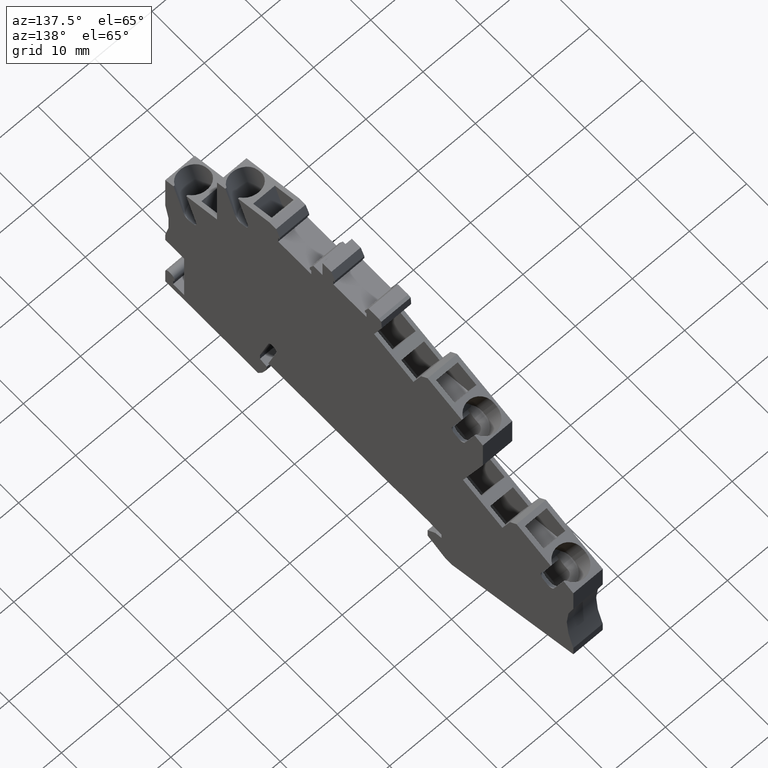
[diagram: clean part render]
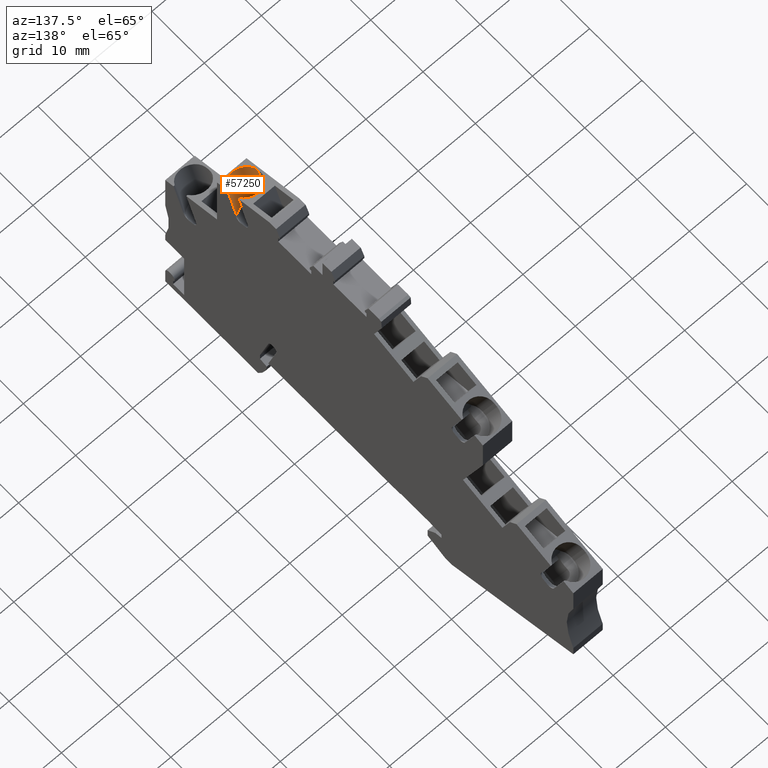
[diagram: same view with one face highlighted and labeled with its STEP entity id]
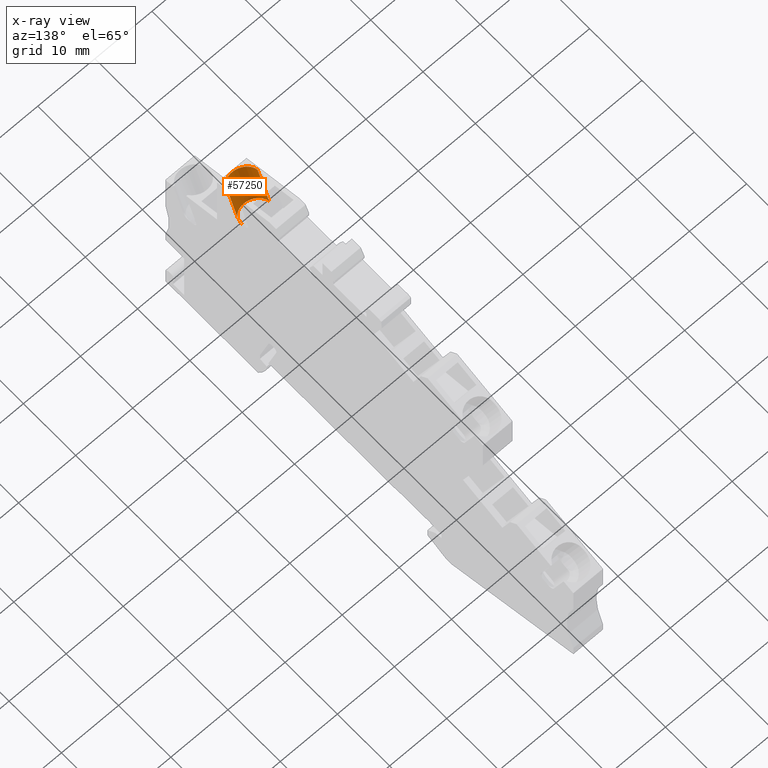
[diagram: x-ray of the same camera — body ghosted, the highlighted face saturated]
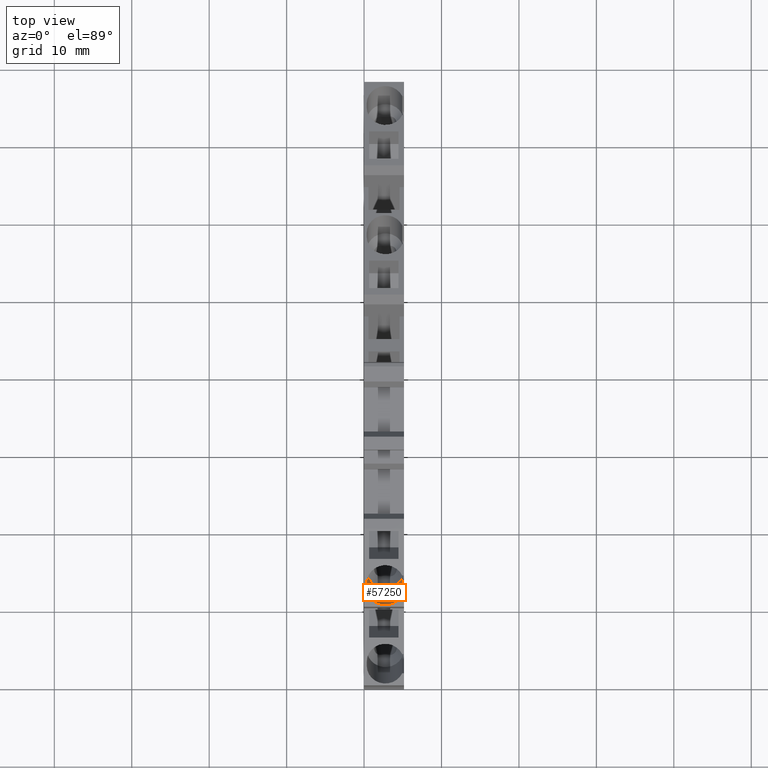
[diagram: same view with one face highlighted and labeled with its STEP entity id]
A machine part, auxiliary view. The second image highlights one B-rep face of the part: STEP entity #57250.
The next image is the same camera in x-ray: the body ghosted, the highlighted face saturated — about 0% of this face is hidden behind the body in this view.
A second angle (top view) of the same face is appended — the face is thin or edge-on in the first view.
In plain terms, the highlighted cylindrical surface (edge-blend (fillet) strip) has radius 2.4 mm, axis along (0, -0.342, 0.9397).
Its self-contained STEP definition (entity closure, byte-faithful):
#12960=CARTESIAN_POINT('',(81.4557408004884,-19.1760009475646,
53.9100000000284));
#12970=VERTEX_POINT('',#12960);
#55620=CARTESIAN_POINT('',(80.6171821680026,-19.7958844400864,
53.6917424229562));
#55630=DIRECTION('',(-0.342020143325669,0.939692620785908,0.));
#55640=VECTOR('',#55630,1.);
#55650=LINE('',#55620,#55640);
#55660=CARTESIAN_POINT('',(80.1740280363758,-18.5783284701046,
53.691742422956));
#55670=VERTEX_POINT('',#55660);
#55680=CARTESIAN_POINT('',(78.2929172480874,-13.4100190557878,
53.6917424229563));
#55690=VERTEX_POINT('',#55680);
#55700=EDGE_CURVE('',#55670,#55690,#55650,.T.);
#55950=CARTESIAN_POINT('',(81.1137206571617,-18.236308326779,
53.9100000000294));
#55960=DIRECTION('',(0.,0.,1.));
#55970=DIRECTION('',(0.974370064785235,0.224951054343865,0.));
#55980=AXIS2_PLACEMENT_3D('',#55950,#55960,#55970);
#55990=CYLINDRICAL_SURFACE('',#55980,1.);
#56000=CARTESIAN_POINT('',(81.5568747887891,-19.4538642967606,
51.5100000000294));
#56010=DIRECTION('',(-0.342020143325669,0.939692620785909,
-3.15544362088405E-30));
#56020=DIRECTION('',(-0.939692620785909,-0.342020143325669,0.));
#56030=AXIS2_PLACEMENT_3D('',#56000,#56010,#56020);
#56040=CYLINDRICAL_SURFACE('',#56030,2.4);
#56050=CARTESIAN_POINT('',(81.4557408004883,-19.1760009475646,
53.9100000000294));
#56060=CARTESIAN_POINT('',(81.4247600961565,-19.187277001778,
53.9100000000294));
#56070=CARTESIAN_POINT('',(81.3932529964507,-19.1970116334997,
53.9093200825125));
#56080=CARTESIAN_POINT('',(81.3612776478972,-19.2051816602639,
53.907967699039));
#56090=CARTESIAN_POINT('',(81.3452981810951,-19.2092645765527,
53.9072918544338));
#56100=CARTESIAN_POINT('',(81.3292198449578,-19.2129512905007,
53.9064487674257));
#56110=CARTESIAN_POINT('',(81.31307694714,-19.2162354004157,
53.9054433626659));
#56120=CARTESIAN_POINT('',(81.2969340301129,-19.2195195142386,
53.9044379567097));
#56130=CARTESIAN_POINT('',(81.2807269032352,-19.222400962137,
53.9032702648623));
#56140=CARTESIAN_POINT('',(81.2644899252798,-19.224877306563,
53.9019476975287));
#56150=CARTESIAN_POINT('',(81.2482601454766,-19.2273525531798,
53.9006257165137));
#56160=CARTESIAN_POINT('',(81.2319696723689,-19.2294281276243,
53.8991466143798));
#56170=CARTESIAN_POINT('',(81.2156305562997,-19.2311019598797,
53.8975158092551));
#56180=CARTESIAN_POINT('',(81.1992929761768,-19.2327756347879,
53.8958851574331));
#56190=CARTESIAN_POINT('',(81.1829135092349,-19.2340466301358,
53.8941033935763));
#56200=CARTESIAN_POINT('',(81.1665238263598,-19.2349132663436,
53.8921797221948));
#56210=CARTESIAN_POINT('',(81.1501341553832,-19.2357799019223,
53.8902560522099));
#56220=CARTESIAN_POINT('',(81.1337345612459,-19.2362421610309,
53.8881905177502));
#56230=CARTESIAN_POINT('',(81.1173569640033,-19.2363017153936,
53.8859944128787));
#56240=CARTESIAN_POINT('',(81.1009793526138,-19.2363612698076,
53.8837983061103));
#56250=CARTESIAN_POINT('',(81.0846240169584,-19.2360181264323,
53.8814716804649));
#56260=CARTESIAN_POINT('',(81.0683222026875,-19.2352772854216,
53.8790276301466));
#56270=CARTESIAN_POINT('',(81.0520135520686,-19.2345361337309,
53.8765825548885));
#56280=CARTESIAN_POINT('',(81.0357886707896,-19.2333997839532,
53.8740249414302));
#56290=CARTESIAN_POINT('',(81.0195892131447,-19.2318681046162,
53.8713548327593));
#56300=CARTESIAN_POINT('',(81.0033860676713,-19.2303360765904,
53.8686841162345));
#56310=CARTESIAN_POINT('',(80.9872053768274,-19.2284068919761,
53.8658999398982));
#56320=CARTESIAN_POINT('',(80.9710723969628,-19.2260817725061,
53.8630149831228));
#56330=CARTESIAN_POINT('',(80.9388060719631,-19.2214314809227,
53.8572450042529));
#56340=CARTESIAN_POINT('',(80.9067328353426,-19.2151953998311,
53.8510710094317));
#56350=CARTESIAN_POINT('',(80.8750585071258,-19.2074109877634,
53.8446118865721));
#56360=CARTESIAN_POINT('',(80.8433843743831,-19.1996266237362,
53.8381528035741));
#56370=CARTESIAN_POINT('',(80.8121145394494,-19.1902951922959,
53.8314100922426));
#56380=CARTESIAN_POINT('',(80.7814474519597,-19.1794915100043,
53.824519521171));
#56390=CARTESIAN_POINT('',(80.7507801282566,-19.1686877444971,
53.8176288970247));
#56400=CARTESIAN_POINT('',(80.7207202164259,-19.1564136191063,
53.8105919903219));
#56410=CARTESIAN_POINT('',(80.691444062277,-19.1427753572952,
53.8035511667807));
#56420=CARTESIAN_POINT('',(80.6768015401305,-19.135954155658,
53.8000296859842));
#56430=CARTESIAN_POINT('',(80.6623742420604,-19.1288023519618,
53.7965120751352));
#56440=CARTESIAN_POINT('',(80.6481268264651,-19.1213068492734,
53.7930024955286));
#56450=CARTESIAN_POINT('',(80.6338693123696,-19.1138060338085,
53.7894904283488));
#56460=CARTESIAN_POINT('',(80.6197590947919,-19.1059426149194,
53.7859781744293));
#56470=CARTESIAN_POINT('',(80.6058206432115,-19.09772435625,
53.7824839861886));
#56480=CARTESIAN_POINT('',(80.5779434705904,-19.0812876800346,
53.7754955421572));
#56490=CARTESIAN_POINT('',(80.550755738501,-19.0634303347866,
53.7685797757662));
#56500=CARTESIAN_POINT('',(80.5244474018929,-19.0442421301476,
53.7618862072146));
#56510=CARTESIAN_POINT('',(80.4981391693026,-19.0250540013749,
53.7551926651281));
#56520=CARTESIAN_POINT('',(80.4727145708035,-19.0045379550813,
53.7487230285023));
#56530=CARTESIAN_POINT('',(80.4483462609987,-18.9828181478336,
53.7426214586913));
#56540=CARTESIAN_POINT('',(80.4239776881488,-18.96109810613,
53.7365198230165));
#56550=CARTESIAN_POINT('',(80.4006695009862,-18.9381781963932,
53.7307878900728));
#56560=CARTESIAN_POINT('',(80.378564771182,-18.914206418906,
53.7255518890658));
#56570=CARTESIAN_POINT('',(80.3675063433006,-18.9022139550813,
53.7229324524096));
#56580=CARTESIAN_POINT('',(80.3567754793549,-18.8899907004319,
53.7204428540856));
#56590=CARTESIAN_POINT('',(80.3463058974033,-18.8774593125109,
53.7180781712197));
#56600=CARTESIAN_POINT('',(80.3358351309172,-18.8649265067815,
53.7157132208123));
#56610=CARTESIAN_POINT('',(80.3256334999654,-18.8520914332736,
53.7134753101517));
#56620=CARTESIAN_POINT('',(80.3157269937054,-18.8389741654355,
53.7113809581859));
#56630=CARTESIAN_POINT('',(80.305820531527,-18.8258569559663,
53.7092866155395));
#56640=CARTESIAN_POINT('',(80.2962094067639,-18.8124577818928,
53.7073359072038));
#56650=CARTESIAN_POINT('',(80.2869182442841,-18.7988007890038,
53.7055434903814));
#56660=CARTESIAN_POINT('',(80.2776271056426,-18.7851438311545,
53.7037510781578));
#56670=CARTESIAN_POINT('',(80.2686561429914,-18.7712293324752,
53.7021170257392));
#56680=CARTESIAN_POINT('',(80.2600276521443,-18.7570849134113,
53.7006534866048));
#56690=CARTESIAN_POINT('',(80.2513991670045,-18.7429405037031,
53.6991899484385));
#56700=CARTESIAN_POINT('',(80.2431133590541,-18.7285664944998,
53.6978969789416));
#56710=CARTESIAN_POINT('',(80.235189386683,-18.7139931672241,
53.6967837144565));
#56720=CARTESIAN_POINT('',(80.2272654036078,-18.6994198202621,
53.6956704484675));
#56730=CARTESIAN_POINT('',(80.2197034425546,-18.6846475095257,
53.6947369248704));
#56740=CARTESIAN_POINT('',(80.2125188972998,-18.669708128373,
53.6939889245211));
#56750=CARTESIAN_POINT('',(80.2053343264963,-18.6547686940952,
53.6932409215119));
#56760=CARTESIAN_POINT('',(80.1985273278468,-18.6396625628495,
53.6926784572442));
#56770=CARTESIAN_POINT('',(80.1921091233385,-18.6244219450971,
53.6923038358038));
#56780=CARTESIAN_POINT('',(80.1856908801584,-18.609181235515,
53.6919292121062));
#56790=CARTESIAN_POINT('',(80.1796615468702,-18.5938064129801,
53.6917424229561));
#56800=CARTESIAN_POINT('',(80.1740280363758,-18.5783284701046,
53.6917424229561));
#56810=B_SPLINE_CURVE_WITH_KNOTS('',3,(#56050,#56060,#56070,#56080,
#56090,#56100,#56110,#56120,#56130,#56140,#56150,#56160,#56170,#56180,
#56190,#56200,#56210,#56220,#56230,#56240,#56250,#56260,#56270,#56280,
#56290,#56300,#56310,#56320,#56330,#56340,#56350,#56360,#56370,#56380,
#56390,#56400,#56410,#56420,#56430,#56440,#56450,#56460,#56470,#56480,
#56490,#56500,#56510,#56520,#56530,#56540,#56550,#56560,#56570,#56580,
#56590,#56600,#56610,#56620,#56630,#56640,#56650,#56660,#56670,#56680,
#56690,#56700,#56710,#56720,#56730,#56740,#56750,#56760,#56770,#56780,
#56790,#56800),.UNSPECIFIED.,.F.,.F.,(4,3,3,3,3,3,3,3,3,3,3,3,3,3,3,3,3,
3,3,3,3,3,3,3,3,4),(0.,0.0989356926830715,0.14845786217973,
0.197936868344443,0.247395812215775,0.296944026892368,0.346523364318,
0.396066517208526,0.445522692013729,0.495095098486032,0.594663763414751,
0.694433383674845,0.793911204421631,0.843398673863144,0.892967270207312,
0.992535371394344,1.09225157442248,1.19163259982037,1.2411034617674,
1.29071772469121,1.34050215845991,1.39038019973508,1.44027424348279,
1.49010933866211,1.5398169636435,1.58933923289508),.UNSPECIFIED.);
#56820=SURFACE_CURVE('',#56810,(#56040,#55990),.CURVE_3D.);
#56830=EDGE_CURVE('',#12970,#55670,#56820,.T.);
#56970=CARTESIAN_POINT('',(79.2326098688736,-13.067998912462,
51.5100000000294));
#56980=DIRECTION('',(0.342020143325669,-0.939692620785908,0.));
#56990=DIRECTION('',(-0.939692620785908,-0.342020143325669,
-6.31088724176809E-30));
#57000=AXIS2_PLACEMENT_3D('',#56970,#56980,#56990);
#57010=CIRCLE('',#57000,2.4);
#57020=CARTESIAN_POINT('',(79.2326098688736,-13.0679989124619,
49.1100000000294));
#57030=VERTEX_POINT('',#57020);
#57040=EDGE_CURVE('',#55690,#57030,#57010,.T.);
#57050=ORIENTED_EDGE('',*,*,#57040,.F.);
#57060=CARTESIAN_POINT('',(81.5568747887892,-19.4538642967606,
49.1100000000294));
#57070=DIRECTION('',(-0.342020143325669,0.939692620785909,
-1.57772181044202E-30));
#57080=VECTOR('',#57070,1.);
#57090=LINE('',#57060,#57080);
#57100=CARTESIAN_POINT('',(81.4557408004883,-19.1760009475646,
49.1100000000294));
#57110=VERTEX_POINT('',#57100);
#57120=EDGE_CURVE('',#57110,#57030,#57090,.T.);
#57130=ORIENTED_EDGE('',*,*,#57120,.T.);
#57140=CARTESIAN_POINT('',(81.4557408004883,-19.1760009475647,
51.5100000000294));
#57150=DIRECTION('',(0.342020143325669,-0.939692620785908,
-1.57772181044202E-30));
#57160=DIRECTION('',(-0.939692620785908,-0.342020143325669,
-6.31088724176809E-30));
#57170=AXIS2_PLACEMENT_3D('',#57140,#57150,#57160);
#57180=CIRCLE('',#57170,2.40000000000001);
#57190=EDGE_CURVE('',#12970,#57110,#57180,.T.);
#57200=ORIENTED_EDGE('',*,*,#57190,.T.);
#57210=ORIENTED_EDGE('',*,*,#56830,.F.);
#57220=ORIENTED_EDGE('',*,*,#55700,.F.);
#57230=EDGE_LOOP('',(#57220,#57210,#57200,#57130,#57050));
#57240=FACE_OUTER_BOUND('',#57230,.T.);
#57250=ADVANCED_FACE('',(#57240),#56040,.F.);